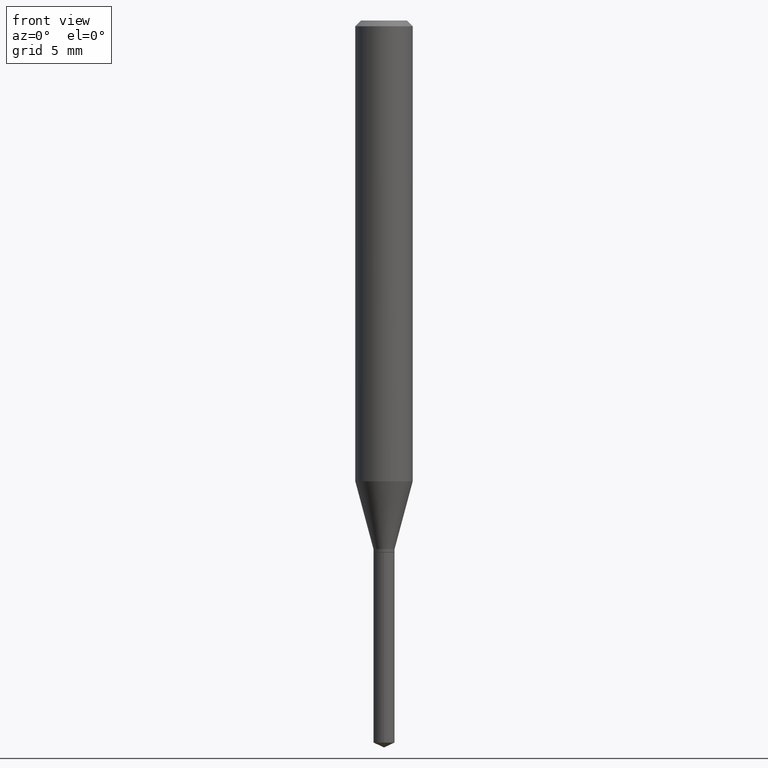
[diagram: clean part render]
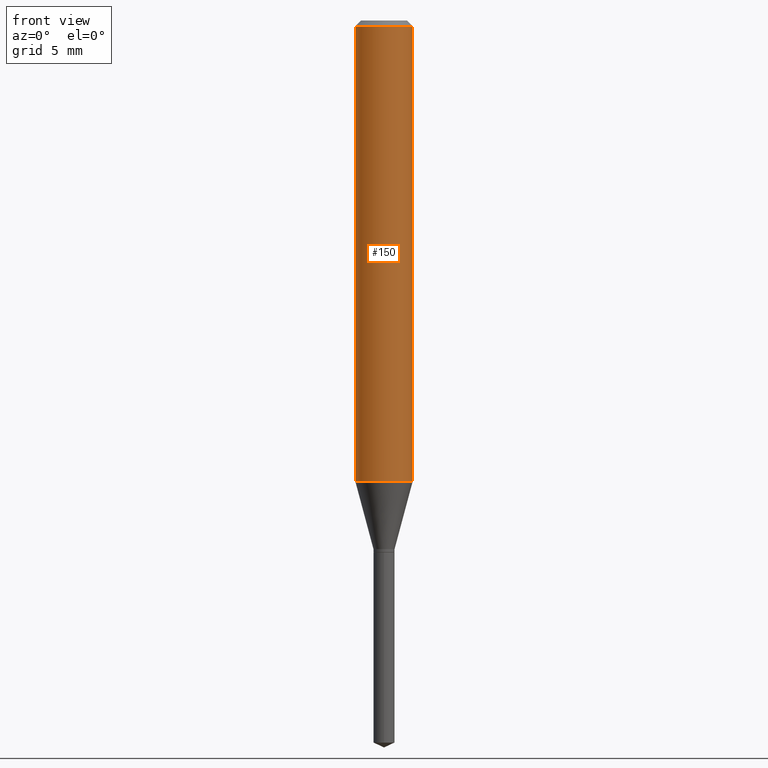
[diagram: same view with one face highlighted and labeled with its STEP entity id]
A machine part, front view. The second image highlights one B-rep face of the part: STEP entity #150.
In plain terms, the highlighted cylindrical surface (edge-blend (fillet) strip) has radius 1.4999 mm, axis along (-0, 0, 1).
Its self-contained STEP definition (entity closure, byte-faithful):
#14 = DIRECTION ( 'NONE',  ( 1.000000000000000000, -6.982962677686266711E-15, 0.000000000000000000 ) ) ;
#27 = EDGE_CURVE ( 'NONE', #411, #396, #64, .T. ) ;
#31 = VECTOR ( 'NONE', #249, 39.37007874015748143 ) ;
#49 = ORIENTED_EDGE ( 'NONE', *, *, #27, .F. ) ;
#56 = ORIENTED_EDGE ( 'NONE', *, *, #244, .T. ) ;
#58 = DIRECTION ( 'NONE',  ( -2.445468806185136597E-29, 3.491481338843145583E-15, 1.000000000000000000 ) ) ;
#63 = CARTESIAN_POINT ( 'NONE',  ( -0.05905000000000011628, -2.891819784135979347E-15, -0.9484212997969238002 ) ) ;
#64 = LINE ( 'NONE', #453, #138 ) ;
#77 = LINE ( 'NONE', #231, #31 ) ;
#80 = AXIS2_PLACEMENT_3D ( 'NONE', #317, #204, #99 ) ;
#84 = FACE_OUTER_BOUND ( 'NONE', #183, .T. ) ;
#92 = VERTEX_POINT ( 'NONE', #382 ) ;
#99 = DIRECTION ( 'NONE',  ( 1.000000000000000000, -6.982962677686268288E-15, 0.000000000000000000 ) ) ;
#100 = VERTEX_POINT ( 'NONE', #426 ) ;
#110 = DIRECTION ( 'NONE',  ( -2.445468806185136877E-29, 3.491481338843145188E-15, 1.000000000000000000 ) ) ;
#111 = CIRCLE ( 'NONE', #141, 0.05905000000000011628 ) ;
#138 = VECTOR ( 'NONE', #110, 39.37007874015748143 ) ;
#141 = AXIS2_PLACEMENT_3D ( 'NONE', #441, #58, #14 ) ;
#150 = ADVANCED_FACE ( 'NONE', ( #84 ), #306, .T. ) ;
#183 = EDGE_LOOP ( 'NONE', ( #49, #418, #56, #433 ) ) ;
#204 = DIRECTION ( 'NONE',  ( -2.445468806185136597E-29, 3.491481338843145583E-15, 1.000000000000000000 ) ) ;
#225 = AXIS2_PLACEMENT_3D ( 'NONE', #428, #239, #387 ) ;
#231 = CARTESIAN_POINT ( 'NONE',  ( 0.05905000000000006771, -4.123439461173745257E-16, 2.879382386107503723E-30 ) ) ;
#233 = CIRCLE ( 'NONE', #80, 0.05905000000000000526 ) ;
#239 = DIRECTION ( 'NONE',  ( -2.445468806185136597E-29, 3.491481338843145583E-15, 1.000000000000000000 ) ) ;
#244 = EDGE_CURVE ( 'NONE', #92, #100, #77, .T. ) ;
#249 = DIRECTION ( 'NONE',  ( -2.445468806185136877E-29, 3.491481338843145188E-15, 1.000000000000000000 ) ) ;
#262 = EDGE_CURVE ( 'NONE', #396, #100, #233, .T. ) ;
#288 = EDGE_CURVE ( 'NONE', #411, #92, #111, .T. ) ;
#306 = CYLINDRICAL_SURFACE ( 'NONE', #225, 0.05905000000000006771 ) ;
#317 = CARTESIAN_POINT ( 'NONE',  ( 2.888098660104664642E-31, -4.123439461173780879E-17, -0.01181000000000007565 ) ) ;
#382 = CARTESIAN_POINT ( 'NONE',  ( 0.05905000000000011628, -3.723739215719695338E-15, -0.9484212997969238002 ) ) ;
#387 = DIRECTION ( 'NONE',  ( 1.000000000000000000, -6.982962677686266711E-15, 4.876176775795936353E-29 ) ) ;
#396 = VERTEX_POINT ( 'NONE', #410 ) ;
#410 = CARTESIAN_POINT ( 'NONE',  ( -0.05905000000000000526, -1.256739346640688594E-15, -0.01181000000000007565 ) ) ;
#411 = VERTEX_POINT ( 'NONE', #63 ) ;
#418 = ORIENTED_EDGE ( 'NONE', *, *, #288, .T. ) ;
#426 = CARTESIAN_POINT ( 'NONE',  ( 0.05905000000000000526, -4.535783407291119586E-16, -0.01181000000000007565 ) ) ;
#428 = CARTESIAN_POINT ( 'NONE',  ( 0.000000000000000000, 0.000000000000000000, 0.000000000000000000 ) ) ;
#433 = ORIENTED_EDGE ( 'NONE', *, *, #262, .F. ) ;
#441 = CARTESIAN_POINT ( 'NONE',  ( 2.319334703774938841E-29, -3.311395269602319629E-15, -0.9484212997969238002 ) ) ;
#453 = CARTESIAN_POINT ( 'NONE',  ( -0.05905000000000006771, 4.195754854663396409E-16, -2.904631170795525045E-30 ) ) ;